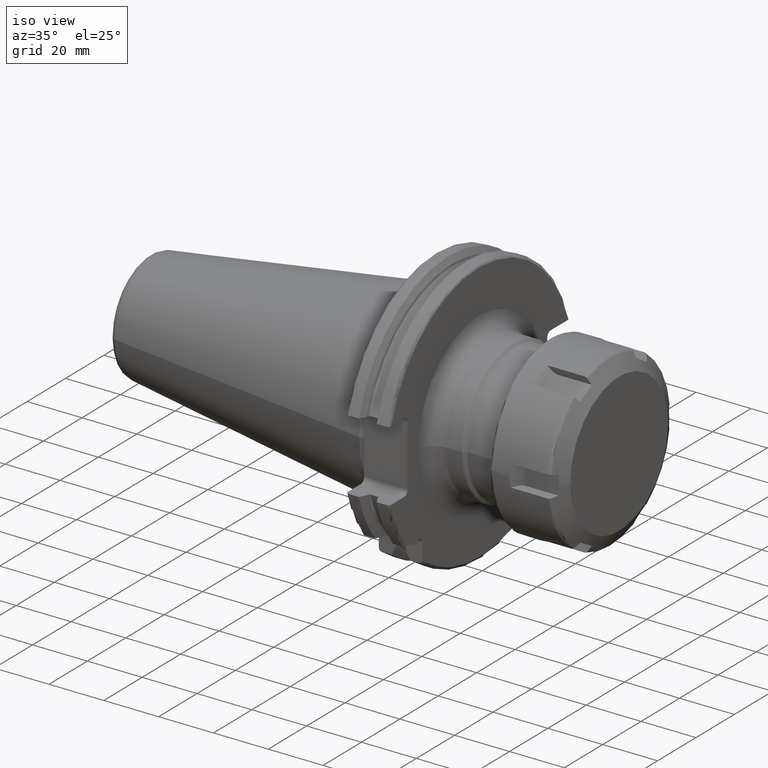
[diagram: clean part render]
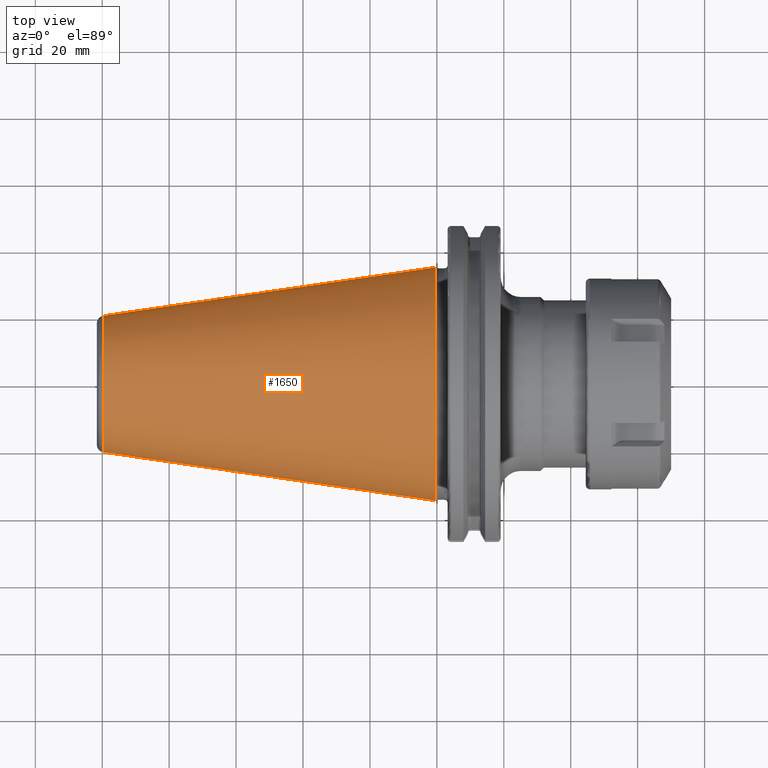
[diagram: tour spotlight — one face highlighted and labeled with its STEP entity id]
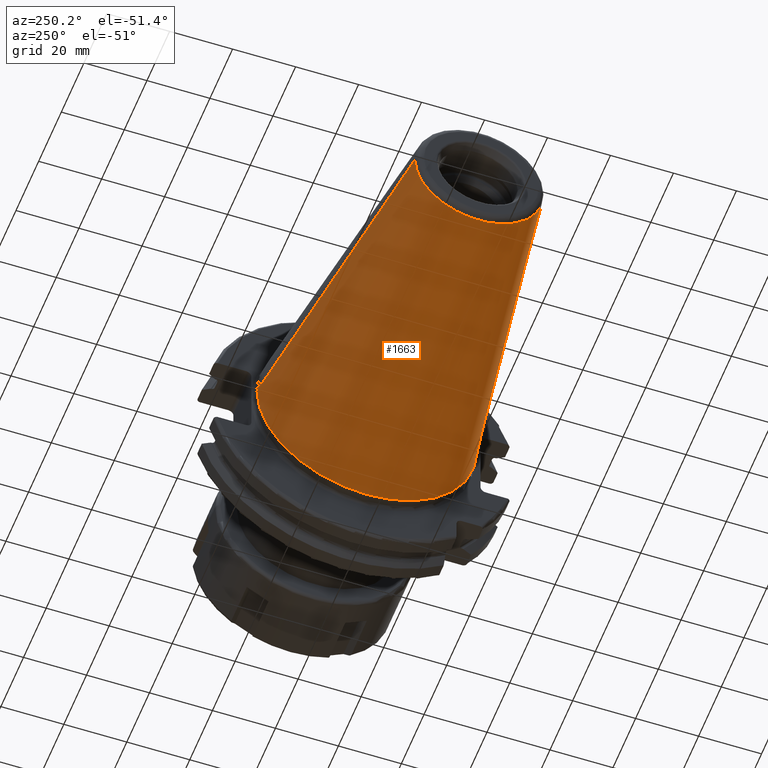
[diagram: tour spotlight — one face highlighted and labeled with its STEP entity id]
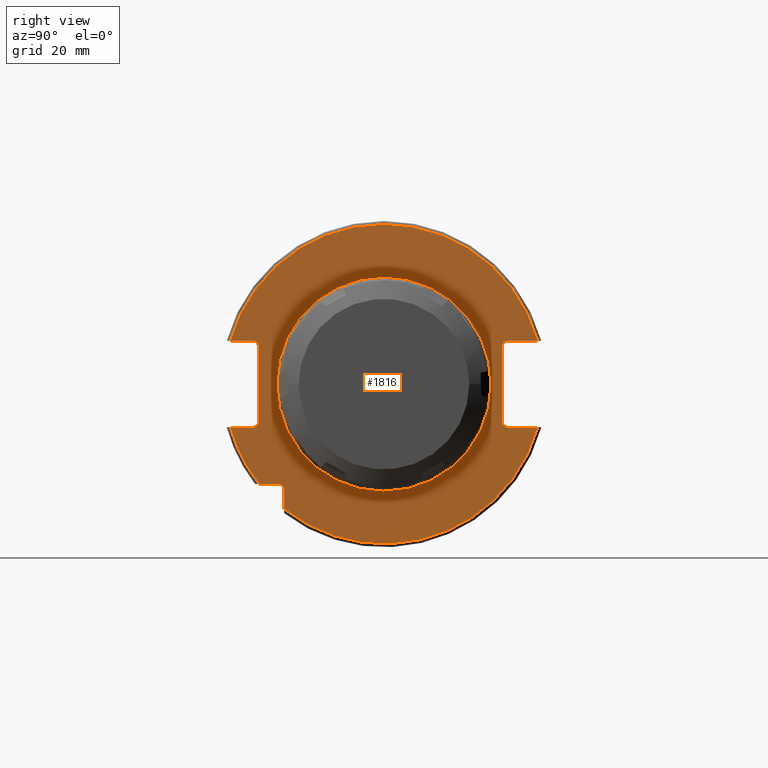
[diagram: tour spotlight — one face highlighted and labeled with its STEP entity id]
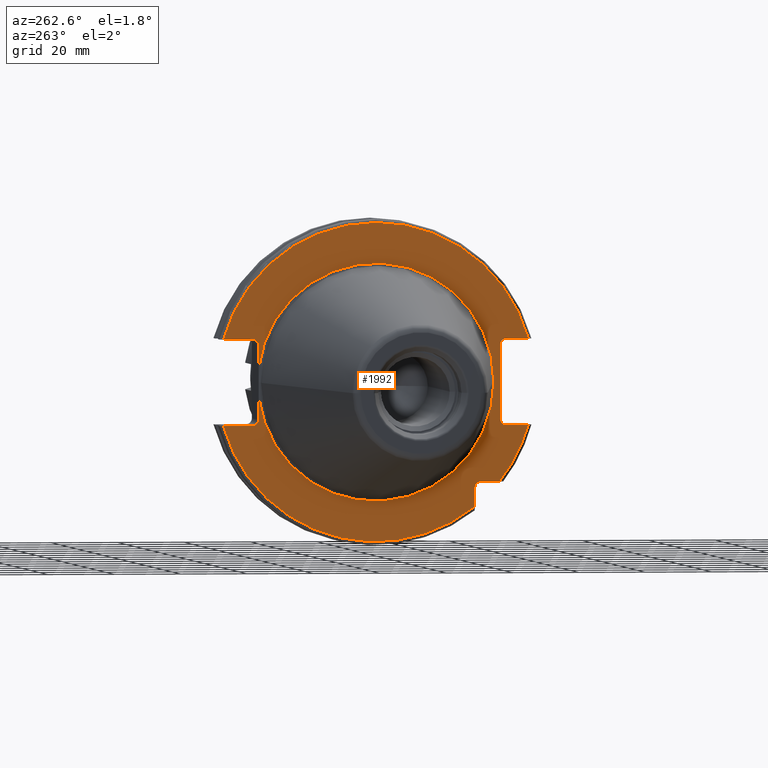
[diagram: tour spotlight — one face highlighted and labeled with its STEP entity id]
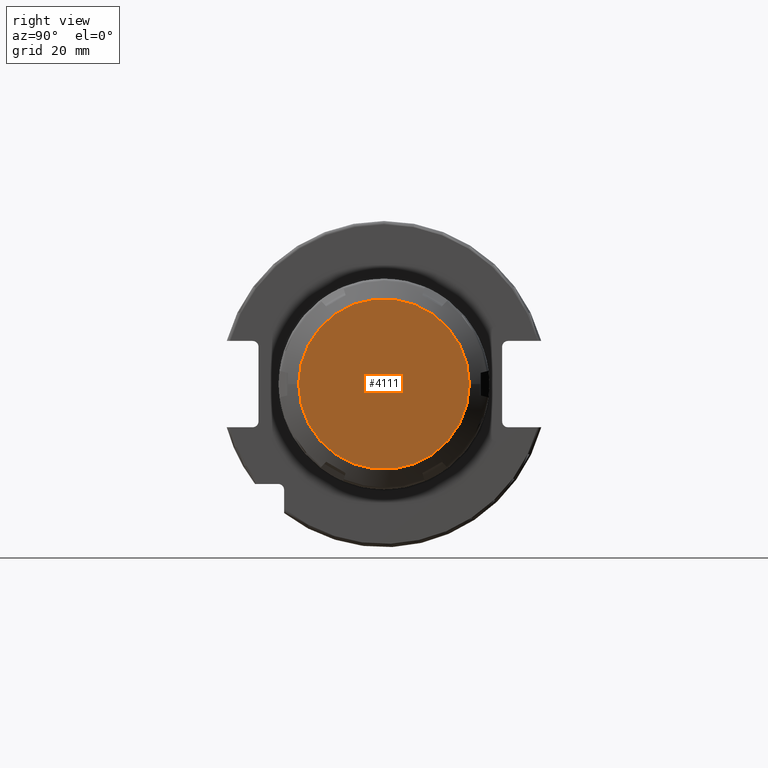
[diagram: tour spotlight — one face highlighted and labeled with its STEP entity id]
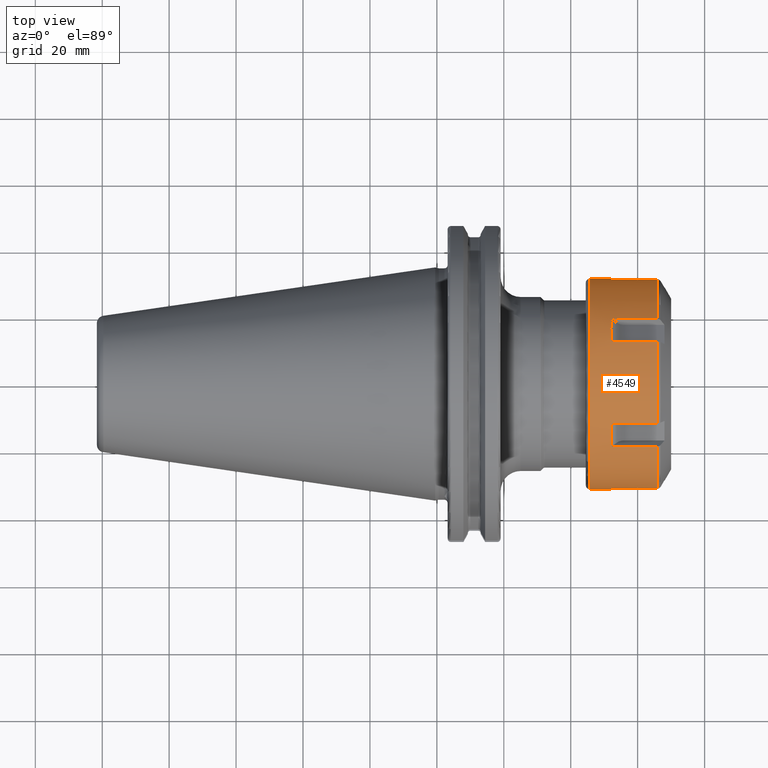
[diagram: tour spotlight — one face highlighted and labeled with its STEP entity id]
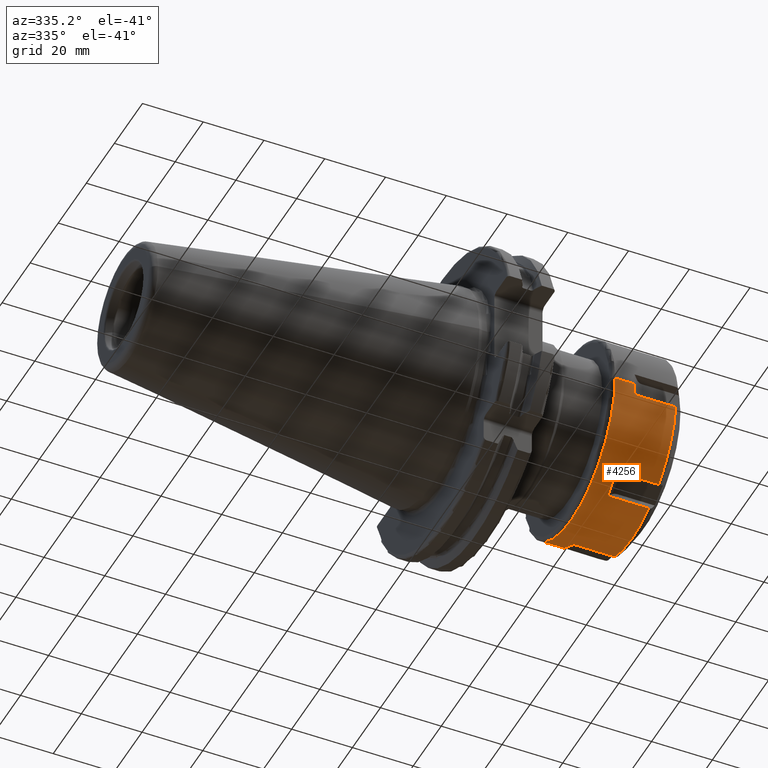
[diagram: tour spotlight — one face highlighted and labeled with its STEP entity id]
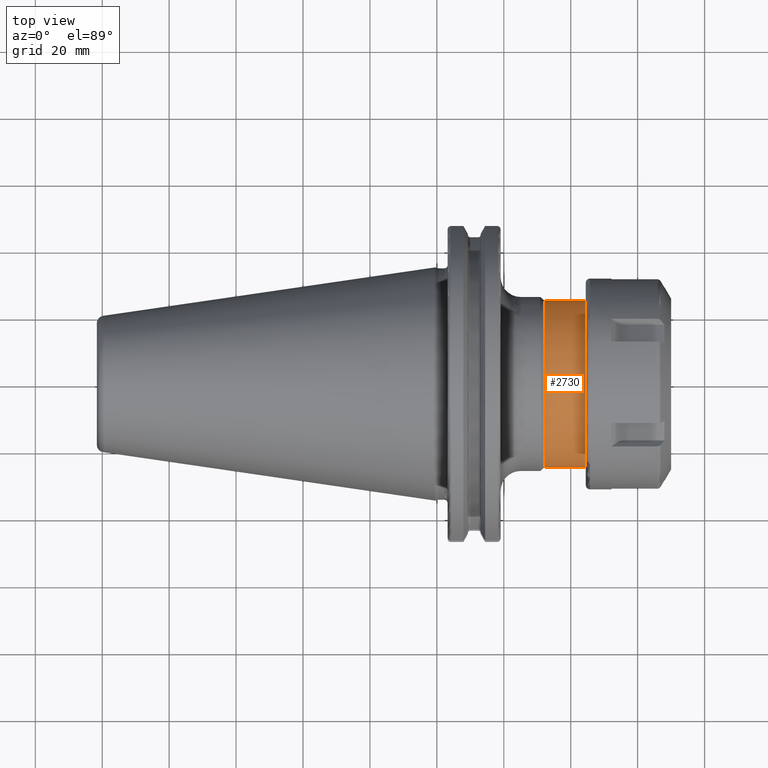
[diagram: tour spotlight — one face highlighted and labeled with its STEP entity id]
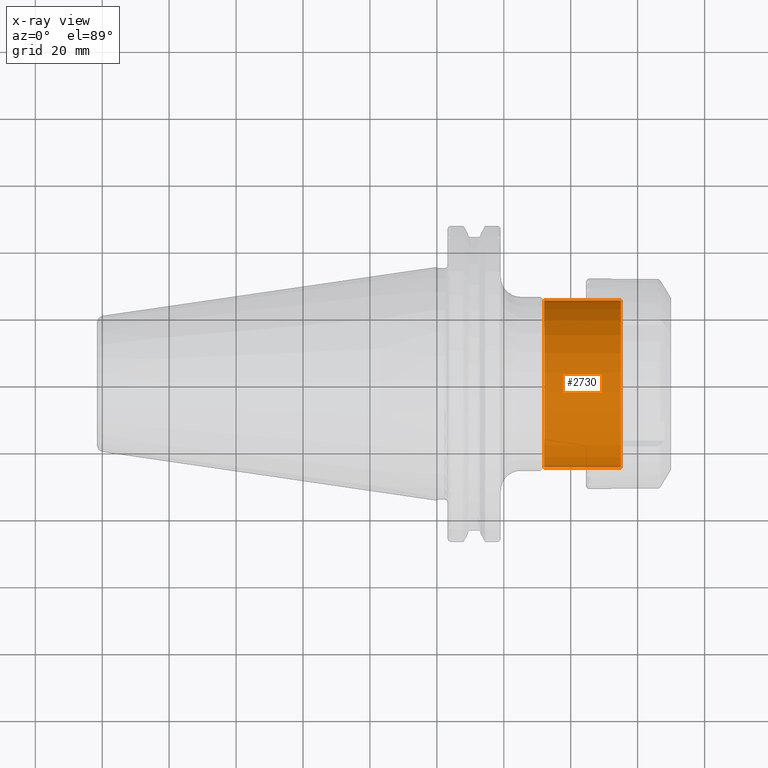
[diagram: x-ray of the same camera — body ghosted, this tour face saturated]
A machine part: a face-by-face anatomy tour. The part has 149 B-rep faces; the first image is the clean iso view, then the 8 largest visible faces are spotlighted one at a time (largest first), each with its STEP entity span.

Face 1 — top view, entity #1650. In plain terms, the highlighted conical surface has half-angle 8.298 deg.
Definition (entity closure, byte-faithful):
#37=CARTESIAN_POINT('',(-9.967471700563E1,0.E0,0.E0));
#38=DIRECTION('',(1.E0,0.E0,0.E0));
#39=DIRECTION('',(0.E0,1.E0,0.E0));
#40=AXIS2_PLACEMENT_3D('',#37,#38,#39);
#42=CARTESIAN_POINT('',(-4.896823332305E-1,0.E0,0.E0));
#43=DIRECTION('',(1.E0,0.E0,0.E0));
#44=DIRECTION('',(0.E0,1.E0,0.E0));
#45=AXIS2_PLACEMENT_3D('',#42,#43,#44);
#47=DIRECTION('',(-9.895312636440E-1,-1.443186691705E-1,0.E0));
#48=VECTOR('',#47,1.002343617797E2);
#49=CARTESIAN_POINT('',(-4.896823332305E-1,3.485358204157E1,0.E0));
#50=LINE('',#49,#48);
#51=DIRECTION('',(-9.895312636440E-1,1.443186691705E-1,0.E0));
#52=VECTOR('',#51,1.002343617797E2);
#53=CARTESIAN_POINT('',(-4.896823332305E-1,-3.485358204157E1,0.E0));
#54=LINE('',#53,#52);
#1318=CARTESIAN_POINT('',(-9.967471700563E1,2.038789234437E1,0.E0));
#1320=VERTEX_POINT('',#1318);
#1322=CARTESIAN_POINT('',(-9.967471700563E1,-2.038789234437E1,0.E0));
#1324=VERTEX_POINT('',#1322);
#1386=CARTESIAN_POINT('',(-4.896823332305E-1,3.485358204157E1,0.E0));
#1387=VERTEX_POINT('',#1386);
#1388=CARTESIAN_POINT('',(-4.896823332305E-1,-3.485358204157E1,0.E0));
#1389=VERTEX_POINT('',#1388);
#1636=CARTESIAN_POINT('',(-5.008219966943E1,0.E0,0.E0));
#1637=DIRECTION('',(1.E0,0.E0,0.E0));
#1638=DIRECTION('',(0.E0,-1.E0,0.E0));
#1639=AXIS2_PLACEMENT_3D('',#1636,#1637,#1638);
#1640=CONICAL_SURFACE('',#1639,2.762073719297E1,8.297826828206E0);
#1642=ORIENTED_EDGE('',*,*,#1641,.F.);
#1644=ORIENTED_EDGE('',*,*,#1643,.T.);
#1646=ORIENTED_EDGE('',*,*,#1645,.T.);
#1647=ORIENTED_EDGE('',*,*,#1629,.F.);
#1648=EDGE_LOOP('',(#1642,#1644,#1646,#1647));
#1649=FACE_OUTER_BOUND('',#1648,.F.);
#1650=ADVANCED_FACE('',(#1649),#1640,.T.);
#41=CIRCLE('',#40,2.038789234437E1);
#46=CIRCLE('',#45,3.485358204157E1);
#1629=EDGE_CURVE('',#1320,#1324,#41,.T.);
#1641=EDGE_CURVE('',#1387,#1320,#50,.T.);
#1643=EDGE_CURVE('',#1387,#1389,#46,.T.);
#1645=EDGE_CURVE('',#1389,#1324,#54,.T.);

Face 2 — auxiliary view, entity #1663. In plain terms, the highlighted conical surface has half-angle 8.298 deg.
Definition (entity closure, byte-faithful):
#32=CARTESIAN_POINT('',(-9.967471700563E1,0.E0,0.E0));
#33=DIRECTION('',(-1.E0,0.E0,0.E0));
#34=DIRECTION('',(0.E0,1.E0,0.E0));
#35=AXIS2_PLACEMENT_3D('',#32,#33,#34);
#47=DIRECTION('',(-9.895312636440E-1,-1.443186691705E-1,0.E0));
#48=VECTOR('',#47,1.002343617797E2);
#49=CARTESIAN_POINT('',(-4.896823332305E-1,3.485358204157E1,0.E0));
#50=LINE('',#49,#48);
#51=DIRECTION('',(-9.895312636440E-1,1.443186691705E-1,0.E0));
#52=VECTOR('',#51,1.002343617797E2);
#53=CARTESIAN_POINT('',(-4.896823332305E-1,-3.485358204157E1,0.E0));
#54=LINE('',#53,#52);
#55=CARTESIAN_POINT('',(-4.896823332305E-1,0.E0,0.E0));
#56=DIRECTION('',(-1.E0,0.E0,0.E0));
#57=DIRECTION('',(0.E0,1.E0,0.E0));
#58=AXIS2_PLACEMENT_3D('',#55,#56,#57);
#1318=CARTESIAN_POINT('',(-9.967471700563E1,2.038789234437E1,0.E0));
#1320=VERTEX_POINT('',#1318);
#1322=CARTESIAN_POINT('',(-9.967471700563E1,-2.038789234437E1,0.E0));
#1324=VERTEX_POINT('',#1322);
#1386=CARTESIAN_POINT('',(-4.896823332305E-1,3.485358204157E1,0.E0));
#1387=VERTEX_POINT('',#1386);
#1388=CARTESIAN_POINT('',(-4.896823332305E-1,-3.485358204157E1,0.E0));
#1389=VERTEX_POINT('',#1388);
#1651=CARTESIAN_POINT('',(-5.008219966943E1,0.E0,0.E0));
#1652=DIRECTION('',(1.E0,0.E0,0.E0));
#1653=DIRECTION('',(0.E0,-1.E0,0.E0));
#1654=AXIS2_PLACEMENT_3D('',#1651,#1652,#1653);
#1655=CONICAL_SURFACE('',#1654,2.762073719297E1,8.297826828206E0);
#1656=ORIENTED_EDGE('',*,*,#1641,.T.);
#1657=ORIENTED_EDGE('',*,*,#1618,.T.);
#1658=ORIENTED_EDGE('',*,*,#1645,.F.);
#1660=ORIENTED_EDGE('',*,*,#1659,.F.);
#1661=EDGE_LOOP('',(#1656,#1657,#1658,#1660));
#1662=FACE_OUTER_BOUND('',#1661,.F.);
#1663=ADVANCED_FACE('',(#1662),#1655,.T.);
#36=CIRCLE('',#35,2.038789234437E1);
#59=CIRCLE('',#58,3.485358204157E1);
#1618=EDGE_CURVE('',#1320,#1324,#36,.T.);
#1641=EDGE_CURVE('',#1387,#1320,#50,.T.);
#1645=EDGE_CURVE('',#1389,#1324,#54,.T.);
#1659=EDGE_CURVE('',#1387,#1389,#59,.T.);

Face 3 — right view, entity #1816. In plain terms, the highlighted planar face has unit normal (1, 0, 0).
Definition (entity closure, byte-faithful):
#130=CARTESIAN_POINT('',(1.905E1,3.705E1,1.115E1));
#131=DIRECTION('',(-1.E0,0.E0,0.E0));
#132=DIRECTION('',(0.E0,-1.E0,0.E0));
#133=AXIS2_PLACEMENT_3D('',#130,#131,#132);
#140=DIRECTION('',(0.E0,0.E0,1.E0));
#141=VECTOR('',#140,2.23E1);
#142=CARTESIAN_POINT('',(1.905E1,-3.75E1,-1.115E1));
#143=LINE('',#142,#141);
#144=DIRECTION('',(0.E0,1.E0,0.E0));
#145=VECTOR('',#144,6.711493733886E0);
#146=CARTESIAN_POINT('',(1.905E1,-4.596149373389E1,1.29E1));
#147=LINE('',#146,#145);
#148=DIRECTION('',(0.E0,-1.E0,0.E0));
#149=VECTOR('',#148,8.911493733886E0);
#150=CARTESIAN_POINT('',(1.905E1,4.596149373389E1,1.29E1));
#151=LINE('',#150,#149);
#152=DIRECTION('',(0.E0,0.E0,-1.E0));
#153=VECTOR('',#152,2.23E1);
#154=CARTESIAN_POINT('',(1.905E1,3.53E1,1.115E1));
#155=LINE('',#154,#153);
#156=DIRECTION('',(0.E0,-1.E0,0.E0));
#157=VECTOR('',#156,8.911493733886E0);
#158=CARTESIAN_POINT('',(1.905E1,4.596149373389E1,-1.29E1));
#159=LINE('',#158,#157);
#160=DIRECTION('',(0.E0,0.E0,1.E0));
#161=VECTOR('',#160,5.653810627237E0);
#162=CARTESIAN_POINT('',(1.905E1,-2.985E1,-3.725381062724E1));
#163=LINE('',#162,#161);
#164=DIRECTION('',(0.E0,-1.E0,0.E0));
#165=VECTOR('',#164,5.653810627237E0);
#166=CARTESIAN_POINT('',(1.905E1,-3.16E1,-2.985E1));
#167=LINE('',#166,#165);
#168=DIRECTION('',(0.E0,1.E0,0.E0));
#169=VECTOR('',#168,6.711493733886E0);
#170=CARTESIAN_POINT('',(1.905E1,-4.596149373389E1,-1.29E1));
#171=LINE('',#170,#169);
#172=CARTESIAN_POINT('',(1.905E1,0.E0,0.E0));
#173=DIRECTION('',(1.E0,0.E0,0.E0));
#174=DIRECTION('',(0.E0,-1.E0,0.E0));
#175=AXIS2_PLACEMENT_3D('',#172,#173,#174);
#177=CARTESIAN_POINT('',(1.905E1,0.E0,0.E0));
#178=DIRECTION('',(1.E0,0.E0,0.E0));
#179=DIRECTION('',(0.E0,1.E0,0.E0));
#180=AXIS2_PLACEMENT_3D('',#177,#178,#179);
#190=CARTESIAN_POINT('',(1.905E1,-3.925E1,-1.115E1));
#191=DIRECTION('',(-1.E0,0.E0,0.E0));
#192=DIRECTION('',(0.E0,1.E0,0.E0));
#193=AXIS2_PLACEMENT_3D('',#190,#191,#192);
#213=CARTESIAN_POINT('',(1.905E1,4.596149373389E1,-1.29E1));
#225=CARTESIAN_POINT('',(1.905E1,0.E0,0.E0));
#226=DIRECTION('',(-1.E0,0.E0,0.E0));
#227=DIRECTION('',(0.E0,9.627964123359E-1,-2.702278083268E-1));
#228=AXIS2_PLACEMENT_3D('',#225,#226,#227);
#230=CARTESIAN_POINT('',(1.905E1,-4.596149373389E1,-1.29E1));
#241=CARTESIAN_POINT('',(1.905E1,0.E0,0.E0));
#242=DIRECTION('',(-1.E0,0.E0,0.E0));
#243=DIRECTION('',(0.E0,-7.803888060170E-1,-6.252945797329E-1));
#244=AXIS2_PLACEMENT_3D('',#241,#242,#243);
#255=CARTESIAN_POINT('',(1.905E1,-3.725381062724E1,-2.985E1));
#261=CARTESIAN_POINT('',(1.905E1,3.705E1,-1.115E1));
#262=DIRECTION('',(-1.E0,0.E0,0.E0));
#263=DIRECTION('',(0.E0,0.E0,-1.E0));
#264=AXIS2_PLACEMENT_3D('',#261,#262,#263);
#326=CARTESIAN_POINT('',(1.905E1,-3.925E1,1.115E1));
#327=DIRECTION('',(-1.E0,0.E0,0.E0));
#328=DIRECTION('',(0.E0,0.E0,1.E0));
#329=AXIS2_PLACEMENT_3D('',#326,#327,#328);
#367=CARTESIAN_POINT('',(1.905E1,4.596149373389E1,1.29E1));
#378=CARTESIAN_POINT('',(1.905E1,0.E0,0.E0));
#379=DIRECTION('',(1.E0,0.E0,0.E0));
#380=DIRECTION('',(0.E0,9.627964123359E-1,2.702278083268E-1));
#381=AXIS2_PLACEMENT_3D('',#378,#379,#380);
#392=CARTESIAN_POINT('',(1.905E1,-4.596149373389E1,1.29E1));
#741=CARTESIAN_POINT('',(1.905E1,-3.16E1,-3.16E1));
#742=DIRECTION('',(-1.E0,0.E0,0.E0));
#743=DIRECTION('',(0.E0,0.E0,1.E0));
#744=AXIS2_PLACEMENT_3D('',#741,#742,#743);
#1459=VERTEX_POINT('',#367);
#1460=VERTEX_POINT('',#392);
#1463=VERTEX_POINT('',#213);
#1464=VERTEX_POINT('',#230);
#1483=CARTESIAN_POINT('',(1.905E1,-2.985E1,-3.725381062724E1));
#1484=VERTEX_POINT('',#1483);
#1491=CARTESIAN_POINT('',(1.905E1,-3.75E1,-1.115E1));
#1493=VERTEX_POINT('',#1491);
#1495=CARTESIAN_POINT('',(1.905E1,-3.925E1,-1.29E1));
#1497=VERTEX_POINT('',#1495);
#1499=CARTESIAN_POINT('',(1.905E1,-3.925E1,1.29E1));
#1501=VERTEX_POINT('',#1499);
#1503=CARTESIAN_POINT('',(1.905E1,-3.75E1,1.115E1));
#1505=VERTEX_POINT('',#1503);
#1507=CARTESIAN_POINT('',(1.905E1,3.53E1,1.115E1));
#1509=VERTEX_POINT('',#1507);
#1511=CARTESIAN_POINT('',(1.905E1,3.705E1,1.29E1));
#1513=VERTEX_POINT('',#1511);
#1515=CARTESIAN_POINT('',(1.905E1,3.705E1,-1.29E1));
#1517=VERTEX_POINT('',#1515);
#1519=CARTESIAN_POINT('',(1.905E1,3.53E1,-1.115E1));
#1521=VERTEX_POINT('',#1519);
#1523=CARTESIAN_POINT('',(1.905E1,-3.16E1,-2.985E1));
#1524=CARTESIAN_POINT('',(1.905E1,-2.985E1,-3.16E1));
#1525=VERTEX_POINT('',#1523);
#1526=VERTEX_POINT('',#1524);
#1547=CARTESIAN_POINT('',(1.905E1,-3.2E1,0.E0));
#1548=CARTESIAN_POINT('',(1.905E1,3.2E1,0.E0));
#1549=VERTEX_POINT('',#1547);
#1550=VERTEX_POINT('',#1548);
#1588=VERTEX_POINT('',#255);
#1773=CARTESIAN_POINT('',(1.905E1,0.E0,0.E0));
#1774=DIRECTION('',(1.E0,0.E0,0.E0));
#1775=DIRECTION('',(0.E0,-1.E0,0.E0));
#1776=AXIS2_PLACEMENT_3D('',#1773,#1774,#1775);
#1777=PLANE('',#1776);
#1779=ORIENTED_EDGE('',*,*,#1778,.T.);
#1781=ORIENTED_EDGE('',*,*,#1780,.F.);
#1783=ORIENTED_EDGE('',*,*,#1782,.F.);
#1785=ORIENTED_EDGE('',*,*,#1784,.F.);
#1787=ORIENTED_EDGE('',*,*,#1786,.T.);
#1788=ORIENTED_EDGE('',*,*,#1764,.F.);
#1789=ORIENTED_EDGE('',*,*,#1753,.T.);
#1791=ORIENTED_EDGE('',*,*,#1790,.F.);
#1793=ORIENTED_EDGE('',*,*,#1792,.F.);
#1795=ORIENTED_EDGE('',*,*,#1794,.T.);
#1797=ORIENTED_EDGE('',*,*,#1796,.T.);
#1799=ORIENTED_EDGE('',*,*,#1798,.F.);
#1801=ORIENTED_EDGE('',*,*,#1800,.T.);
#1803=ORIENTED_EDGE('',*,*,#1802,.T.);
#1805=ORIENTED_EDGE('',*,*,#1804,.T.);
#1807=ORIENTED_EDGE('',*,*,#1806,.F.);
#1808=EDGE_LOOP('',(#1779,#1781,#1783,#1785,#1787,#1788,#1789,#1791,#1793,#1795,
#1797,#1799,#1801,#1803,#1805,#1807));
#1809=FACE_OUTER_BOUND('',#1808,.F.);
#1811=ORIENTED_EDGE('',*,*,#1810,.T.);
#1813=ORIENTED_EDGE('',*,*,#1812,.T.);
#1814=EDGE_LOOP('',(#1811,#1813));
#1815=FACE_BOUND('',#1814,.F.);
#1816=ADVANCED_FACE('',(#1809,#1815),#1777,.T.);
#134=CIRCLE('',#133,1.75E0);
#176=CIRCLE('',#175,3.2E1);
#181=CIRCLE('',#180,3.2E1);
#194=CIRCLE('',#193,1.75E0);
#229=CIRCLE('',#228,4.77375E1);
#245=CIRCLE('',#244,4.77375E1);
#265=CIRCLE('',#264,1.75E0);
#330=CIRCLE('',#329,1.75E0);
#382=CIRCLE('',#381,4.77375E1);
#745=CIRCLE('',#744,1.75E0);
#1753=EDGE_CURVE('',#1509,#1521,#155,.T.);
#1764=EDGE_CURVE('',#1509,#1513,#134,.T.);
#1778=EDGE_CURVE('',#1493,#1505,#143,.T.);
#1780=EDGE_CURVE('',#1501,#1505,#330,.T.);
#1782=EDGE_CURVE('',#1460,#1501,#147,.T.);
#1784=EDGE_CURVE('',#1459,#1460,#382,.T.);
#1786=EDGE_CURVE('',#1459,#1513,#151,.T.);
#1790=EDGE_CURVE('',#1517,#1521,#265,.T.);
#1792=EDGE_CURVE('',#1463,#1517,#159,.T.);
#1794=EDGE_CURVE('',#1463,#1484,#229,.T.);
#1796=EDGE_CURVE('',#1484,#1526,#163,.T.);
#1798=EDGE_CURVE('',#1525,#1526,#745,.T.);
#1800=EDGE_CURVE('',#1525,#1588,#167,.T.);
#1802=EDGE_CURVE('',#1588,#1464,#245,.T.);
#1804=EDGE_CURVE('',#1464,#1497,#171,.T.);
#1806=EDGE_CURVE('',#1493,#1497,#194,.T.);
#1810=EDGE_CURVE('',#1549,#1550,#176,.T.);
#1812=EDGE_CURVE('',#1550,#1549,#181,.T.);

Face 4 — auxiliary view, entity #1992. In plain terms, the highlighted planar face has unit normal (1, 0, 0).
Definition (entity closure, byte-faithful):
#105=CARTESIAN_POINT('',(3.2E0,3.53E1,-4.414818795828E0));
#117=CARTESIAN_POINT('',(3.2E0,0.E0,0.E0));
#118=DIRECTION('',(-1.E0,0.E0,0.E0));
#119=DIRECTION('',(0.E0,9.922698524245E-1,-1.240989120402E-1));
#120=AXIS2_PLACEMENT_3D('',#117,#118,#119);
#135=CARTESIAN_POINT('',(3.2E0,3.705E1,1.115E1));
#136=DIRECTION('',(1.E0,0.E0,0.E0));
#137=DIRECTION('',(0.E0,0.E0,1.E0));
#138=AXIS2_PLACEMENT_3D('',#135,#136,#137);
#195=CARTESIAN_POINT('',(3.2E0,-3.925E1,-1.115E1));
#196=DIRECTION('',(1.E0,0.E0,0.E0));
#197=DIRECTION('',(0.E0,0.E0,-1.E0));
#198=AXIS2_PLACEMENT_3D('',#195,#196,#197);
#266=CARTESIAN_POINT('',(3.2E0,3.705E1,-1.115E1));
#267=DIRECTION('',(1.E0,0.E0,0.E0));
#268=DIRECTION('',(0.E0,-1.E0,0.E0));
#269=AXIS2_PLACEMENT_3D('',#266,#267,#268);
#271=DIRECTION('',(0.E0,1.E0,0.E0));
#272=VECTOR('',#271,6.711493733886E0);
#273=CARTESIAN_POINT('',(3.2E0,-4.596149373389E1,1.29E1));
#274=LINE('',#273,#272);
#275=DIRECTION('',(0.E0,0.E0,1.E0));
#276=VECTOR('',#275,2.23E1);
#277=CARTESIAN_POINT('',(3.2E0,-3.75E1,-1.115E1));
#278=LINE('',#277,#276);
#279=DIRECTION('',(0.E0,1.E0,0.E0));
#280=VECTOR('',#279,6.711493733886E0);
#281=CARTESIAN_POINT('',(3.2E0,-4.596149373389E1,-1.29E1));
#282=LINE('',#281,#280);
#283=CARTESIAN_POINT('',(3.2E0,0.E0,0.E0));
#284=DIRECTION('',(-1.E0,0.E0,0.E0));
#285=DIRECTION('',(0.E0,-7.803888060170E-1,-6.252945797329E-1));
#286=AXIS2_PLACEMENT_3D('',#283,#284,#285);
#288=DIRECTION('',(0.E0,-1.E0,0.E0));
#289=VECTOR('',#288,5.653810627237E0);
#290=CARTESIAN_POINT('',(3.2E0,-3.16E1,-2.985E1));
#291=LINE('',#290,#289);
#292=DIRECTION('',(0.E0,0.E0,1.E0));
#293=VECTOR('',#292,5.653810627237E0);
#294=CARTESIAN_POINT('',(3.2E0,-2.985E1,-3.725381062724E1));
#295=LINE('',#294,#293);
#296=CARTESIAN_POINT('',(3.2E0,0.E0,0.E0));
#297=DIRECTION('',(-1.E0,0.E0,0.E0));
#298=DIRECTION('',(0.E0,9.627964123359E-1,-2.702278083268E-1));
#299=AXIS2_PLACEMENT_3D('',#296,#297,#298);
#301=DIRECTION('',(0.E0,-1.E0,0.E0));
#302=VECTOR('',#301,8.911493733886E0);
#303=CARTESIAN_POINT('',(3.2E0,4.596149373389E1,-1.29E1));
#304=LINE('',#303,#302);
#305=DIRECTION('',(0.E0,0.E0,-1.E0));
#306=VECTOR('',#305,6.735181204172E0);
#307=CARTESIAN_POINT('',(3.2E0,3.53E1,-4.414818795828E0));
#308=LINE('',#307,#306);
#309=DIRECTION('',(0.E0,0.E0,-1.E0));
#310=VECTOR('',#309,6.735181204172E0);
#311=CARTESIAN_POINT('',(3.2E0,3.53E1,1.115E1));
#312=LINE('',#311,#310);
#313=DIRECTION('',(0.E0,-1.E0,0.E0));
#314=VECTOR('',#313,8.911493733886E0);
#315=CARTESIAN_POINT('',(3.2E0,4.596149373389E1,1.29E1));
#316=LINE('',#315,#314);
#317=CARTESIAN_POINT('',(3.2E0,0.E0,0.E0));
#318=DIRECTION('',(1.E0,0.E0,0.E0));
#319=DIRECTION('',(0.E0,9.627964123359E-1,2.702278083268E-1));
#320=AXIS2_PLACEMENT_3D('',#317,#318,#319);
#331=CARTESIAN_POINT('',(3.2E0,-3.925E1,1.115E1));
#332=DIRECTION('',(1.E0,0.E0,0.E0));
#333=DIRECTION('',(0.E0,1.E0,0.E0));
#334=AXIS2_PLACEMENT_3D('',#331,#332,#333);
#345=CARTESIAN_POINT('',(3.2E0,4.596149373389E1,1.29E1));
#352=CARTESIAN_POINT('',(3.2E0,-4.596149373389E1,1.29E1));
#746=CARTESIAN_POINT('',(3.2E0,-3.16E1,-3.16E1));
#747=DIRECTION('',(1.E0,0.E0,0.E0));
#748=DIRECTION('',(0.E0,1.E0,0.E0));
#749=AXIS2_PLACEMENT_3D('',#746,#747,#748);
#755=CARTESIAN_POINT('',(3.2E0,4.596149373389E1,-1.29E1));
#790=CARTESIAN_POINT('',(3.2E0,-4.596149373389E1,-1.29E1));
#797=CARTESIAN_POINT('',(3.2E0,-3.725381062724E1,-2.985E1));
#936=CARTESIAN_POINT('',(3.2E0,3.53E1,4.414818795828E0));
#947=CARTESIAN_POINT('',(3.2E0,0.E0,0.E0));
#948=DIRECTION('',(1.E0,0.E0,0.E0));
#949=DIRECTION('',(0.E0,9.922698524245E-1,1.240989120402E-1));
#950=AXIS2_PLACEMENT_3D('',#947,#948,#949);
#1330=CARTESIAN_POINT('',(3.2E0,-3.5575E1,0.E0));
#1332=VERTEX_POINT('',#1330);
#1456=VERTEX_POINT('',#936);
#1458=VERTEX_POINT('',#105);
#1461=VERTEX_POINT('',#345);
#1462=VERTEX_POINT('',#352);
#1465=VERTEX_POINT('',#755);
#1466=VERTEX_POINT('',#790);
#1489=CARTESIAN_POINT('',(3.2E0,-2.985E1,-3.725381062724E1));
#1490=VERTEX_POINT('',#1489);
#1492=CARTESIAN_POINT('',(3.2E0,-3.75E1,-1.115E1));
#1494=VERTEX_POINT('',#1492);
#1496=CARTESIAN_POINT('',(3.2E0,-3.925E1,-1.29E1));
#1498=VERTEX_POINT('',#1496);
#1500=CARTESIAN_POINT('',(3.2E0,-3.925E1,1.29E1));
#1502=VERTEX_POINT('',#1500);
#1504=CARTESIAN_POINT('',(3.2E0,-3.75E1,1.115E1));
#1506=VERTEX_POINT('',#1504);
#1508=CARTESIAN_POINT('',(3.2E0,3.53E1,1.115E1));
#1510=VERTEX_POINT('',#1508);
#1512=CARTESIAN_POINT('',(3.2E0,3.705E1,1.29E1));
#1514=VERTEX_POINT('',#1512);
#1516=CARTESIAN_POINT('',(3.2E0,3.705E1,-1.29E1));
#1518=VERTEX_POINT('',#1516);
#1520=CARTESIAN_POINT('',(3.2E0,3.53E1,-1.115E1));
#1522=VERTEX_POINT('',#1520);
#1527=CARTESIAN_POINT('',(3.2E0,-2.985E1,-3.16E1));
#1528=CARTESIAN_POINT('',(3.2E0,-3.16E1,-2.985E1));
#1529=VERTEX_POINT('',#1527);
#1530=VERTEX_POINT('',#1528);
#1589=VERTEX_POINT('',#797);
#1956=CARTESIAN_POINT('',(3.2E0,0.E0,0.E0));
#1957=DIRECTION('',(1.E0,0.E0,0.E0));
#1958=DIRECTION('',(0.E0,-1.E0,0.E0));
#1959=AXIS2_PLACEMENT_3D('',#1956,#1957,#1958);
#1960=PLANE('',#1959);
#1962=ORIENTED_EDGE('',*,*,#1961,.T.);
#1964=ORIENTED_EDGE('',*,*,#1963,.F.);
#1965=ORIENTED_EDGE('',*,*,#1824,.F.);
#1966=ORIENTED_EDGE('',*,*,#1841,.F.);
#1967=ORIENTED_EDGE('',*,*,#1875,.F.);
#1969=ORIENTED_EDGE('',*,*,#1968,.F.);
#1971=ORIENTED_EDGE('',*,*,#1970,.F.);
#1973=ORIENTED_EDGE('',*,*,#1972,.F.);
#1975=ORIENTED_EDGE('',*,*,#1974,.F.);
#1977=ORIENTED_EDGE('',*,*,#1976,.F.);
#1978=ORIENTED_EDGE('',*,*,#1916,.T.);
#1979=ORIENTED_EDGE('',*,*,#1951,.F.);
#1980=ORIENTED_EDGE('',*,*,#1749,.F.);
#1981=ORIENTED_EDGE('',*,*,#1732,.T.);
#1983=ORIENTED_EDGE('',*,*,#1982,.F.);
#1984=ORIENTED_EDGE('',*,*,#1744,.F.);
#1985=ORIENTED_EDGE('',*,*,#1768,.F.);
#1987=ORIENTED_EDGE('',*,*,#1986,.F.);
#1989=ORIENTED_EDGE('',*,*,#1988,.T.);
#1990=EDGE_LOOP('',(#1962,#1964,#1965,#1966,#1967,#1969,#1971,#1973,#1975,#1977,
#1978,#1979,#1980,#1981,#1983,#1984,#1985,#1987,#1989));
#1991=FACE_OUTER_BOUND('',#1990,.F.);
#1992=ADVANCED_FACE('',(#1991),#1960,.F.);
#121=CIRCLE('',#120,3.5575E1);
#139=CIRCLE('',#138,1.75E0);
#199=CIRCLE('',#198,1.75E0);
#270=CIRCLE('',#269,1.75E0);
#287=CIRCLE('',#286,4.77375E1);
#300=CIRCLE('',#299,4.77375E1);
#321=CIRCLE('',#320,4.77375E1);
#335=CIRCLE('',#334,1.75E0);
#750=CIRCLE('',#749,1.75E0);
#951=CIRCLE('',#950,3.5575E1);
#1732=EDGE_CURVE('',#1458,#1332,#121,.T.);
#1744=EDGE_CURVE('',#1510,#1456,#312,.T.);
#1749=EDGE_CURVE('',#1458,#1522,#308,.T.);
#1768=EDGE_CURVE('',#1514,#1510,#139,.T.);
#1824=EDGE_CURVE('',#1494,#1506,#278,.T.);
#1841=EDGE_CURVE('',#1498,#1494,#199,.T.);
#1875=EDGE_CURVE('',#1466,#1498,#282,.T.);
#1916=EDGE_CURVE('',#1465,#1518,#304,.T.);
#1951=EDGE_CURVE('',#1522,#1518,#270,.T.);
#1961=EDGE_CURVE('',#1462,#1502,#274,.T.);
#1963=EDGE_CURVE('',#1506,#1502,#335,.T.);
#1968=EDGE_CURVE('',#1589,#1466,#287,.T.);
#1970=EDGE_CURVE('',#1530,#1589,#291,.T.);
#1972=EDGE_CURVE('',#1529,#1530,#750,.T.);
#1974=EDGE_CURVE('',#1490,#1529,#295,.T.);
#1976=EDGE_CURVE('',#1465,#1490,#300,.T.);
#1982=EDGE_CURVE('',#1456,#1332,#951,.T.);
#1986=EDGE_CURVE('',#1461,#1514,#316,.T.);
#1988=EDGE_CURVE('',#1461,#1462,#321,.T.);

Face 5 — right view, entity #4111. In plain terms, the highlighted planar face has unit normal (1, 0, 0).
Definition (entity closure, byte-faithful):
#3345=CARTESIAN_POINT('',(2.55E1,0.E0,0.E0));
#3346=DIRECTION('',(-1.E0,0.E0,0.E0));
#3347=DIRECTION('',(0.E0,1.E0,0.E0));
#3348=AXIS2_PLACEMENT_3D('',#3345,#3346,#3347);
#3705=CARTESIAN_POINT('',(2.55E1,0.E0,0.E0));
#3706=DIRECTION('',(1.E0,0.E0,0.E0));
#3707=DIRECTION('',(0.E0,1.E0,0.E0));
#3708=AXIS2_PLACEMENT_3D('',#3705,#3706,#3707);
#3988=CARTESIAN_POINT('',(2.55E1,2.55E1,0.E0));
#3989=CARTESIAN_POINT('',(2.55E1,-2.55E1,0.E0));
#3990=VERTEX_POINT('',#3988);
#3991=VERTEX_POINT('',#3989);
#4100=CARTESIAN_POINT('',(2.55E1,0.E0,0.E0));
#4101=DIRECTION('',(1.E0,0.E0,0.E0));
#4102=DIRECTION('',(0.E0,-1.E0,0.E0));
#4103=AXIS2_PLACEMENT_3D('',#4100,#4101,#4102);
#4104=PLANE('',#4103);
#4106=ORIENTED_EDGE('',*,*,#4105,.T.);
#4108=ORIENTED_EDGE('',*,*,#4107,.F.);
#4109=EDGE_LOOP('',(#4106,#4108));
#4110=FACE_OUTER_BOUND('',#4109,.F.);
#4111=ADVANCED_FACE('',(#4110),#4104,.T.);
#3349=CIRCLE('',#3348,2.55E1);
#3709=CIRCLE('',#3708,2.55E1);
#4105=EDGE_CURVE('',#3990,#3991,#3349,.T.);
#4107=EDGE_CURVE('',#3990,#3991,#3709,.T.);

Face 6 — top view, entity #4549. In plain terms, the highlighted cylindrical surface (partial cylindrical patch) has radius 31.5 mm, axis along (1, 0, 0).
Definition (entity closure, byte-faithful):
#3423=DIRECTION('',(-1.E0,0.E0,1.226696553146E-12));
#3424=VECTOR('',#3423,6.25E0);
#3425=CARTESIAN_POINT('',(7.5E0,3.149999999997E1,3.183525763783E-14));
#3426=LINE('',#3425,#3424);
#3432=DIRECTION('',(-1.E0,0.E0,-1.230541309323E-12));
#3433=VECTOR('',#3432,6.25E0);
#3434=CARTESIAN_POINT('',(7.5E0,-3.149999999997E1,0.E0));
#3435=LINE('',#3434,#3433);
#3472=CARTESIAN_POINT('',(2.131421054840E1,1.906488828622E1,2.507548672772E1));
#3492=CARTESIAN_POINT('',(2.131421054840E1,3.124845266157E1,3.972934212316E0));
#3494=CARTESIAN_POINT('',(2.131421054840E1,-1.218356437536E1,2.904842094003E1));
#3514=CARTESIAN_POINT('',(2.131421054840E1,1.218356437536E1,2.904842094003E1));
#3516=CARTESIAN_POINT('',(2.131421054840E1,-3.124845266157E1,3.972934212316E0));
#3536=CARTESIAN_POINT('',(2.131421054840E1,-1.906488828622E1,2.507548672772E1));
#3741=CARTESIAN_POINT('',(7.5E0,-3.148999999997E1,7.936623967406E-1));
#3742=CARTESIAN_POINT('',(7.526914489918E0,-3.146308551005E1,1.861543766702E0));
#3743=CARTESIAN_POINT('',(7.607834703287E0,-3.138216529668E1,2.921239740395E0));
#3744=CARTESIAN_POINT('',(7.741547338395E0,-3.124845266157E1,3.972934212316E0));
#3760=DIRECTION('',(1.E0,0.E0,0.E0));
#3761=VECTOR('',#3760,1.357266321E1);
#3762=CARTESIAN_POINT('',(7.741547338395E0,-3.124845266157E1,3.972934212316E0));
#3763=LINE('',#3762,#3761);
#3764=CARTESIAN_POINT('',(7.5E0,0.E0,0.E0));
#3765=DIRECTION('',(1.E0,0.E0,0.E0));
#3766=DIRECTION('',(0.E0,-9.996825396825E-1,2.519563164259E-2));
#3767=AXIS2_PLACEMENT_3D('',#3764,#3765,#3766);
#3769=CARTESIAN_POINT('',(1.25E0,0.E0,0.E0));
#3770=DIRECTION('',(-1.E0,0.E0,0.E0));
#3771=DIRECTION('',(0.E0,-1.E0,0.E0));
#3772=AXIS2_PLACEMENT_3D('',#3769,#3770,#3771);
#3774=CARTESIAN_POINT('',(7.5E0,0.E0,0.E0));
#3775=DIRECTION('',(1.E0,0.E0,0.E0));
#3776=DIRECTION('',(0.E0,1.E0,0.E0));
#3777=AXIS2_PLACEMENT_3D('',#3774,#3775,#3776);
#3779=DIRECTION('',(1.E0,0.E0,0.E0));
#3780=VECTOR('',#3779,1.357266321E1);
#3781=CARTESIAN_POINT('',(7.741547338395E0,3.124845266157E1,3.972934212316E0));
#3782=LINE('',#3781,#3780);
#3783=CARTESIAN_POINT('',(2.131421054840E1,0.E0,0.E0));
#3784=DIRECTION('',(-1.E0,0.E0,0.E0));
#3785=DIRECTION('',(0.E0,6.052345487694E-1,7.960471977062E-1));
#3786=AXIS2_PLACEMENT_3D('',#3783,#3784,#3785);
#3788=DIRECTION('',(1.E0,0.E0,0.E0));
#3789=VECTOR('',#3788,1.357266321E1);
#3790=CARTESIAN_POINT('',(7.741547338395E0,1.906488828622E1,2.507548672772E1));
#3791=LINE('',#3790,#3789);
#3792=CARTESIAN_POINT('',(7.741547338395E0,1.906488828622E1,2.507548672772E1));
#3793=CARTESIAN_POINT('',(7.404800931005E0,1.693948685296E1,2.669142907526E1));
#3794=CARTESIAN_POINT('',(7.404800931005E0,1.464571221600E1,2.801574047936E1));
#3795=CARTESIAN_POINT('',(7.741547338395E0,1.218356437536E1,2.904842094003E1));
#3797=DIRECTION('',(1.E0,0.E0,0.E0));
#3798=VECTOR('',#3797,1.357266321E1);
#3799=CARTESIAN_POINT('',(7.741547338395E0,1.218356437536E1,2.904842094003E1));
#3800=LINE('',#3799,#3798);
#3801=CARTESIAN_POINT('',(2.131421054840E1,0.E0,0.E0));
#3802=DIRECTION('',(-1.E0,0.E0,0.E0));
#3803=DIRECTION('',(0.E0,-3.867798214403E-1,9.221720933354E-1));
#3804=AXIS2_PLACEMENT_3D('',#3801,#3802,#3803);
#3806=DIRECTION('',(1.E0,0.E0,0.E0));
#3807=VECTOR('',#3806,1.357266321E1);
#3808=CARTESIAN_POINT('',(7.741547338395E0,-1.218356437536E1,2.904842094003E1));
#3809=LINE('',#3808,#3807);
#3810=CARTESIAN_POINT('',(7.741547338395E0,-1.218356437536E1,2.904842094003E1));
#3811=CARTESIAN_POINT('',(7.404800931005E0,-1.464571221600E1,2.801574047936E1));
#3812=CARTESIAN_POINT('',(7.404800931005E0,-1.693948685296E1,2.669142907526E1));
#3813=CARTESIAN_POINT('',(7.741547338395E0,-1.906488828622E1,2.507548672772E1));
#3815=DIRECTION('',(1.E0,0.E0,0.E0));
#3816=VECTOR('',#3815,1.357266321E1);
#3817=CARTESIAN_POINT('',(7.741547338395E0,-1.906488828622E1,2.507548672772E1));
#3818=LINE('',#3817,#3816);
#3819=CARTESIAN_POINT('',(2.131421054840E1,0.E0,0.E0));
#3820=DIRECTION('',(-1.E0,0.E0,0.E0));
#3821=DIRECTION('',(0.E0,-9.920143702097E-1,1.261248956292E-1));
#3822=AXIS2_PLACEMENT_3D('',#3819,#3820,#3821);
#3852=CARTESIAN_POINT('',(7.741547338395E0,3.124845266157E1,3.972934212316E0));
#3853=CARTESIAN_POINT('',(7.607834703287E0,3.138216529668E1,2.921239740395E0));
#3854=CARTESIAN_POINT('',(7.526914489918E0,3.146308551005E1,1.861543766702E0));
#3855=CARTESIAN_POINT('',(7.5E0,3.148999999997E1,7.936623967410E-1));
#3996=CARTESIAN_POINT('',(1.25E0,3.149999999997E1,1.784644752757E-14));
#3997=CARTESIAN_POINT('',(1.25E0,-3.149999999997E1,-2.170408494488E-14));
#3998=VERTEX_POINT('',#3996);
#3999=VERTEX_POINT('',#3997);
#4005=VERTEX_POINT('',#3492);
#4007=CARTESIAN_POINT('',(7.5E0,3.149999999997E1,3.183525763783E-14));
#4008=VERTEX_POINT('',#4007);
#4010=CARTESIAN_POINT('',(7.5E0,3.148999999997E1,7.936623967410E-1));
#4012=VERTEX_POINT('',#4010);
#4013=CARTESIAN_POINT('',(7.741547338395E0,3.124845266157E1,3.972934212316E0));
#4014=VERTEX_POINT('',#4013);
#4022=VERTEX_POINT('',#3741);
#4023=VERTEX_POINT('',#3744);
#4030=VERTEX_POINT('',#3514);
#4031=VERTEX_POINT('',#3472);
#4032=CARTESIAN_POINT('',(7.741547338395E0,1.218356437536E1,2.904842094003E1));
#4033=VERTEX_POINT('',#4032);
#4034=CARTESIAN_POINT('',(7.741547338395E0,1.906488828622E1,2.507548672772E1));
#4035=VERTEX_POINT('',#4034);
#4045=VERTEX_POINT('',#3536);
#4046=VERTEX_POINT('',#3494);
#4047=CARTESIAN_POINT('',(7.741547338395E0,-1.906488828622E1,2.507548672772E1));
#4048=VERTEX_POINT('',#4047);
#4049=CARTESIAN_POINT('',(7.741547338395E0,-1.218356437536E1,2.904842094003E1));
#4050=VERTEX_POINT('',#4049);
#4062=VERTEX_POINT('',#3516);
#4063=CARTESIAN_POINT('',(7.5E0,-3.149999999997E1,0.E0));
#4064=VERTEX_POINT('',#4063);
#4515=CARTESIAN_POINT('',(-1.275E0,0.E0,0.E0));
#4516=DIRECTION('',(1.E0,0.E0,0.E0));
#4517=DIRECTION('',(0.E0,-1.E0,0.E0));
#4518=AXIS2_PLACEMENT_3D('',#4515,#4516,#4517);
#4519=CYLINDRICAL_SURFACE('',#4518,3.149999999997E1);
#4520=ORIENTED_EDGE('',*,*,#4464,.F.);
#4521=ORIENTED_EDGE('',*,*,#4483,.F.);
#4522=ORIENTED_EDGE('',*,*,#4510,.T.);
#4523=ORIENTED_EDGE('',*,*,#4235,.T.);
#4525=ORIENTED_EDGE('',*,*,#4524,.T.);
#4526=ORIENTED_EDGE('',*,*,#4231,.F.);
#4528=ORIENTED_EDGE('',*,*,#4527,.T.);
#4530=ORIENTED_EDGE('',*,*,#4529,.F.);
#4532=ORIENTED_EDGE('',*,*,#4531,.T.);
#4533=ORIENTED_EDGE('',*,*,#4264,.F.);
#4534=ORIENTED_EDGE('',*,*,#4354,.F.);
#4536=ORIENTED_EDGE('',*,*,#4535,.T.);
#4538=ORIENTED_EDGE('',*,*,#4537,.T.);
#4539=ORIENTED_EDGE('',*,*,#4280,.F.);
#4541=ORIENTED_EDGE('',*,*,#4540,.F.);
#4543=ORIENTED_EDGE('',*,*,#4542,.T.);
#4545=ORIENTED_EDGE('',*,*,#4544,.T.);
#4546=ORIENTED_EDGE('',*,*,#4296,.F.);
#4547=EDGE_LOOP('',(#4520,#4521,#4522,#4523,#4525,#4526,#4528,#4530,#4532,#4533,
#4534,#4536,#4538,#4539,#4541,#4543,#4545,#4546));
#4548=FACE_OUTER_BOUND('',#4547,.F.);
#4549=ADVANCED_FACE('',(#4548),#4519,.T.);
#3745=B_SPLINE_CURVE_WITH_KNOTS('',3,(#3741,#3742,#3743,#3744),.UNSPECIFIED.,
.F.,.F.,(4,4),(0.E0,1.E0),.UNSPECIFIED.);
#3768=CIRCLE('',#3767,3.149999999997E1);
#3773=CIRCLE('',#3772,3.149999999997E1);
#3778=CIRCLE('',#3777,3.149999999997E1);
#3787=CIRCLE('',#3786,3.149999999997E1);
#3796=B_SPLINE_CURVE_WITH_KNOTS('',3,(#3792,#3793,#3794,#3795),.UNSPECIFIED.,
.F.,.F.,(4,4),(0.E0,1.E0),.UNSPECIFIED.);
#3805=CIRCLE('',#3804,3.149999999997E1);
#3814=B_SPLINE_CURVE_WITH_KNOTS('',3,(#3810,#3811,#3812,#3813),.UNSPECIFIED.,
.F.,.F.,(4,4),(0.E0,1.E0),.UNSPECIFIED.);
#3823=CIRCLE('',#3822,3.149999999997E1);
#3856=B_SPLINE_CURVE_WITH_KNOTS('',3,(#3852,#3853,#3854,#3855),.UNSPECIFIED.,
.F.,.F.,(4,4),(0.E0,1.E0),.UNSPECIFIED.);
#4231=EDGE_CURVE('',#4008,#3998,#3426,.T.);
#4235=EDGE_CURVE('',#4064,#3999,#3435,.T.);
#4264=EDGE_CURVE('',#4031,#4005,#3787,.T.);
#4280=EDGE_CURVE('',#4046,#4030,#3805,.T.);
#4296=EDGE_CURVE('',#4062,#4045,#3823,.T.);
#4354=EDGE_CURVE('',#4035,#4031,#3791,.T.);
#4464=EDGE_CURVE('',#4023,#4062,#3763,.T.);
#4483=EDGE_CURVE('',#4022,#4023,#3745,.T.);
#4510=EDGE_CURVE('',#4022,#4064,#3768,.T.);
#4524=EDGE_CURVE('',#3999,#3998,#3773,.T.);
#4527=EDGE_CURVE('',#4008,#4012,#3778,.T.);
#4529=EDGE_CURVE('',#4014,#4012,#3856,.T.);
#4531=EDGE_CURVE('',#4014,#4005,#3782,.T.);
#4535=EDGE_CURVE('',#4035,#4033,#3796,.T.);
#4537=EDGE_CURVE('',#4033,#4030,#3800,.T.);
#4540=EDGE_CURVE('',#4050,#4046,#3809,.T.);
#4542=EDGE_CURVE('',#4050,#4048,#3814,.T.);
#4544=EDGE_CURVE('',#4048,#4045,#3818,.T.);

Face 7 — auxiliary view, entity #4256. In plain terms, the highlighted cylindrical surface (partial cylindrical patch) has radius 31.5 mm, axis along (1, 0, 0).
Definition (entity closure, byte-faithful):
#3400=CARTESIAN_POINT('',(7.741547338395E0,1.218356437536E1,-2.904842094003E1));
#3401=CARTESIAN_POINT('',(7.404800931005E0,1.464571221600E1,-2.801574047936E1));
#3402=CARTESIAN_POINT('',(7.404800931005E0,1.693948685296E1,-2.669142907526E1));
#3403=CARTESIAN_POINT('',(7.741547338395E0,1.906488828622E1,-2.507548672772E1));
#3405=DIRECTION('',(1.E0,0.E0,0.E0));
#3406=VECTOR('',#3405,1.357266321E1);
#3407=CARTESIAN_POINT('',(7.741547338395E0,1.906488828622E1,-2.507548672772E1));
#3408=LINE('',#3407,#3406);
#3409=CARTESIAN_POINT('',(2.131421054840E1,0.E0,0.E0));
#3410=DIRECTION('',(-1.E0,0.E0,0.E0));
#3411=DIRECTION('',(0.E0,9.920143702097E-1,-1.261248956292E-1));
#3412=AXIS2_PLACEMENT_3D('',#3409,#3410,#3411);
#3414=DIRECTION('',(1.E0,0.E0,0.E0));
#3415=VECTOR('',#3414,1.357266321E1);
#3416=CARTESIAN_POINT('',(7.741547338395E0,3.124845266157E1,-3.972934212316E0));
#3417=LINE('',#3416,#3415);
#3418=CARTESIAN_POINT('',(7.5E0,0.E0,0.E0));
#3419=DIRECTION('',(1.E0,0.E0,0.E0));
#3420=DIRECTION('',(0.E0,9.996825396825E-1,-2.519563164260E-2));
#3421=AXIS2_PLACEMENT_3D('',#3418,#3419,#3420);
#3423=DIRECTION('',(-1.E0,0.E0,1.226696553146E-12));
#3424=VECTOR('',#3423,6.25E0);
#3425=CARTESIAN_POINT('',(7.5E0,3.149999999997E1,3.183525763783E-14));
#3426=LINE('',#3425,#3424);
#3427=CARTESIAN_POINT('',(1.25E0,0.E0,0.E0));
#3428=DIRECTION('',(-1.E0,0.E0,0.E0));
#3429=DIRECTION('',(0.E0,1.E0,0.E0));
#3430=AXIS2_PLACEMENT_3D('',#3427,#3428,#3429);
#3432=DIRECTION('',(-1.E0,0.E0,-1.230541309323E-12));
#3433=VECTOR('',#3432,6.25E0);
#3434=CARTESIAN_POINT('',(7.5E0,-3.149999999997E1,0.E0));
#3435=LINE('',#3434,#3433);
#3436=CARTESIAN_POINT('',(7.5E0,0.E0,0.E0));
#3437=DIRECTION('',(1.E0,0.E0,0.E0));
#3438=DIRECTION('',(0.E0,-1.E0,0.E0));
#3439=AXIS2_PLACEMENT_3D('',#3436,#3437,#3438);
#3441=DIRECTION('',(1.E0,0.E0,0.E0));
#3442=VECTOR('',#3441,1.357266321E1);
#3443=CARTESIAN_POINT('',(7.741547338395E0,-3.124845266157E1,
-3.972934212316E0));
#3444=LINE('',#3443,#3442);
#3445=CARTESIAN_POINT('',(2.131421054840E1,0.E0,0.E0));
#3446=DIRECTION('',(-1.E0,0.E0,0.E0));
#3447=DIRECTION('',(0.E0,-6.052345487694E-1,-7.960471977062E-1));
#3448=AXIS2_PLACEMENT_3D('',#3445,#3446,#3447);
#3450=DIRECTION('',(1.E0,0.E0,0.E0));
#3451=VECTOR('',#3450,1.357266321E1);
#3452=CARTESIAN_POINT('',(7.741547338395E0,-1.906488828622E1,
-2.507548672772E1));
#3453=LINE('',#3452,#3451);
#3454=CARTESIAN_POINT('',(7.741547338395E0,-1.906488828622E1,
-2.507548672772E1));
#3455=CARTESIAN_POINT('',(7.404800931005E0,-1.693948685296E1,
-2.669142907526E1));
#3456=CARTESIAN_POINT('',(7.404800931005E0,-1.464571221600E1,
-2.801574047936E1));
#3457=CARTESIAN_POINT('',(7.741547338395E0,-1.218356437536E1,
-2.904842094003E1));
#3459=DIRECTION('',(1.E0,0.E0,0.E0));
#3460=VECTOR('',#3459,1.357266321E1);
#3461=CARTESIAN_POINT('',(7.741547338395E0,-1.218356437536E1,
-2.904842094003E1));
#3462=LINE('',#3461,#3460);
#3463=CARTESIAN_POINT('',(2.131421054840E1,0.E0,0.E0));
#3464=DIRECTION('',(-1.E0,0.E0,0.E0));
#3465=DIRECTION('',(0.E0,3.867798214403E-1,-9.221720933354E-1));
#3466=AXIS2_PLACEMENT_3D('',#3463,#3464,#3465);
#3468=DIRECTION('',(1.E0,0.E0,0.E0));
#3469=VECTOR('',#3468,1.357266321E1);
#3470=CARTESIAN_POINT('',(7.741547338395E0,1.218356437536E1,-2.904842094003E1));
#3471=LINE('',#3470,#3469);
#3538=CARTESIAN_POINT('',(2.131421054840E1,-1.906488828622E1,
-2.507548672772E1));
#3558=CARTESIAN_POINT('',(2.131421054840E1,-3.124845266157E1,
-3.972934212316E0));
#3569=CARTESIAN_POINT('',(2.131421054840E1,1.906488828622E1,-2.507548672772E1));
#3571=CARTESIAN_POINT('',(2.131421054840E1,3.124845266157E1,-3.972934212316E0));
#3582=CARTESIAN_POINT('',(2.131421054840E1,1.218356437536E1,-2.904842094003E1));
#3602=CARTESIAN_POINT('',(2.131421054840E1,-1.218356437536E1,
-2.904842094003E1));
#3736=CARTESIAN_POINT('',(7.741547338395E0,-3.124845266157E1,
-3.972934212316E0));
#3737=CARTESIAN_POINT('',(7.607834703287E0,-3.138216529668E1,
-2.921239740395E0));
#3738=CARTESIAN_POINT('',(7.526914489918E0,-3.146308551005E1,
-1.861543766702E0));
#3739=CARTESIAN_POINT('',(7.5E0,-3.148999999997E1,-7.936623967406E-1));
#3857=CARTESIAN_POINT('',(7.5E0,3.148999999997E1,-7.936623967410E-1));
#3858=CARTESIAN_POINT('',(7.526914489918E0,3.146308551005E1,-1.861543766702E0));
#3859=CARTESIAN_POINT('',(7.607834703287E0,3.138216529668E1,-2.921239740395E0));
#3860=CARTESIAN_POINT('',(7.741547338395E0,3.124845266157E1,-3.972934212316E0));
#3996=CARTESIAN_POINT('',(1.25E0,3.149999999997E1,1.784644752757E-14));
#3997=CARTESIAN_POINT('',(1.25E0,-3.149999999997E1,-2.170408494488E-14));
#3998=VERTEX_POINT('',#3996);
#3999=VERTEX_POINT('',#3997);
#4006=VERTEX_POINT('',#3571);
#4007=CARTESIAN_POINT('',(7.5E0,3.149999999997E1,3.183525763783E-14));
#4008=VERTEX_POINT('',#4007);
#4009=CARTESIAN_POINT('',(7.5E0,3.148999999997E1,-7.936623967409E-1));
#4011=VERTEX_POINT('',#4009);
#4015=CARTESIAN_POINT('',(7.741547338395E0,3.124845266157E1,-3.972934212316E0));
#4016=VERTEX_POINT('',#4015);
#4024=VERTEX_POINT('',#3736);
#4025=VERTEX_POINT('',#3739);
#4061=VERTEX_POINT('',#3558);
#4063=CARTESIAN_POINT('',(7.5E0,-3.149999999997E1,0.E0));
#4064=VERTEX_POINT('',#4063);
#4074=VERTEX_POINT('',#3602);
#4075=VERTEX_POINT('',#3538);
#4076=CARTESIAN_POINT('',(7.741547338395E0,-1.218356437536E1,
-2.904842094003E1));
#4077=VERTEX_POINT('',#4076);
#4078=CARTESIAN_POINT('',(7.741547338395E0,-1.906488828622E1,
-2.507548672772E1));
#4079=VERTEX_POINT('',#4078);
#4089=VERTEX_POINT('',#3569);
#4090=VERTEX_POINT('',#3582);
#4091=CARTESIAN_POINT('',(7.741547338395E0,1.906488828622E1,-2.507548672772E1));
#4092=VERTEX_POINT('',#4091);
#4093=CARTESIAN_POINT('',(7.741547338395E0,1.218356437536E1,-2.904842094003E1));
#4094=VERTEX_POINT('',#4093);
#4216=CARTESIAN_POINT('',(-1.275E0,0.E0,0.E0));
#4217=DIRECTION('',(1.E0,0.E0,0.E0));
#4218=DIRECTION('',(0.E0,-1.E0,0.E0));
#4219=AXIS2_PLACEMENT_3D('',#4216,#4217,#4218);
#4220=CYLINDRICAL_SURFACE('',#4219,3.149999999997E1);
#4221=ORIENTED_EDGE('',*,*,#4210,.T.);
#4222=ORIENTED_EDGE('',*,*,#4163,.T.);
#4224=ORIENTED_EDGE('',*,*,#4223,.F.);
#4226=ORIENTED_EDGE('',*,*,#4225,.F.);
#4228=ORIENTED_EDGE('',*,*,#4227,.F.);
#4230=ORIENTED_EDGE('',*,*,#4229,.T.);
#4232=ORIENTED_EDGE('',*,*,#4231,.T.);
#4234=ORIENTED_EDGE('',*,*,#4233,.T.);
#4236=ORIENTED_EDGE('',*,*,#4235,.F.);
#4238=ORIENTED_EDGE('',*,*,#4237,.T.);
#4240=ORIENTED_EDGE('',*,*,#4239,.F.);
#4242=ORIENTED_EDGE('',*,*,#4241,.T.);
#4244=ORIENTED_EDGE('',*,*,#4243,.F.);
#4246=ORIENTED_EDGE('',*,*,#4245,.F.);
#4248=ORIENTED_EDGE('',*,*,#4247,.T.);
#4250=ORIENTED_EDGE('',*,*,#4249,.T.);
#4252=ORIENTED_EDGE('',*,*,#4251,.F.);
#4253=ORIENTED_EDGE('',*,*,#4193,.F.);
#4254=EDGE_LOOP('',(#4221,#4222,#4224,#4226,#4228,#4230,#4232,#4234,#4236,#4238,
#4240,#4242,#4244,#4246,#4248,#4250,#4252,#4253));
#4255=FACE_OUTER_BOUND('',#4254,.F.);
#4256=ADVANCED_FACE('',(#4255),#4220,.T.);
#3404=B_SPLINE_CURVE_WITH_KNOTS('',3,(#3400,#3401,#3402,#3403),.UNSPECIFIED.,
.F.,.F.,(4,4),(0.E0,1.E0),.UNSPECIFIED.);
#3413=CIRCLE('',#3412,3.149999999997E1);
#3422=CIRCLE('',#3421,3.149999999997E1);
#3431=CIRCLE('',#3430,3.149999999997E1);
#3440=CIRCLE('',#3439,3.149999999997E1);
#3449=CIRCLE('',#3448,3.149999999997E1);
#3458=B_SPLINE_CURVE_WITH_KNOTS('',3,(#3454,#3455,#3456,#3457),.UNSPECIFIED.,
.F.,.F.,(4,4),(0.E0,1.E0),.UNSPECIFIED.);
#3467=CIRCLE('',#3466,3.149999999997E1);
#3740=B_SPLINE_CURVE_WITH_KNOTS('',3,(#3736,#3737,#3738,#3739),.UNSPECIFIED.,
.F.,.F.,(4,4),(0.E0,1.E0),.UNSPECIFIED.);
#3861=B_SPLINE_CURVE_WITH_KNOTS('',3,(#3857,#3858,#3859,#3860),.UNSPECIFIED.,
.F.,.F.,(4,4),(0.E0,1.E0),.UNSPECIFIED.);
#4163=EDGE_CURVE('',#4092,#4089,#3408,.T.);
#4193=EDGE_CURVE('',#4094,#4090,#3471,.T.);
#4210=EDGE_CURVE('',#4094,#4092,#3404,.T.);
#4223=EDGE_CURVE('',#4006,#4089,#3413,.T.);
#4225=EDGE_CURVE('',#4016,#4006,#3417,.T.);
#4227=EDGE_CURVE('',#4011,#4016,#3861,.T.);
#4229=EDGE_CURVE('',#4011,#4008,#3422,.T.);
#4231=EDGE_CURVE('',#4008,#3998,#3426,.T.);
#4233=EDGE_CURVE('',#3998,#3999,#3431,.T.);
#4235=EDGE_CURVE('',#4064,#3999,#3435,.T.);
#4237=EDGE_CURVE('',#4064,#4025,#3440,.T.);
#4239=EDGE_CURVE('',#4024,#4025,#3740,.T.);
#4241=EDGE_CURVE('',#4024,#4061,#3444,.T.);
#4243=EDGE_CURVE('',#4075,#4061,#3449,.T.);
#4245=EDGE_CURVE('',#4079,#4075,#3453,.T.);
#4247=EDGE_CURVE('',#4079,#4077,#3458,.T.);
#4249=EDGE_CURVE('',#4077,#4074,#3462,.T.);
#4251=EDGE_CURVE('',#4090,#4074,#3467,.T.);

Face 8 — top view, entity #2730. An x-ray twin of the same camera follows (body ghosted, this face saturated) — the face is partly hidden behind the body. In plain terms, the highlighted cylindrical surface (partial cylindrical patch) has radius 25 mm, axis along (1, 0, 0).
Definition (entity closure, byte-faithful):
#1043=DIRECTION('',(-1.E0,0.E0,2.732770419529E-14));
#1044=VECTOR('',#1043,2.283431457505E1);
#1045=CARTESIAN_POINT('',(5.5E1,-2.5E1,0.E0));
#1046=LINE('',#1045,#1044);
#1052=DIRECTION('',(-1.E0,0.E0,-2.748642271193E-14));
#1053=VECTOR('',#1052,2.283431457505E1);
#1054=CARTESIAN_POINT('',(5.5E1,2.5E1,0.E0));
#1055=LINE('',#1054,#1053);
#1056=CARTESIAN_POINT('',(3.216568542495E1,0.E0,0.E0));
#1057=DIRECTION('',(1.E0,0.E0,0.E0));
#1058=DIRECTION('',(0.E0,1.E0,0.E0));
#1059=AXIS2_PLACEMENT_3D('',#1056,#1057,#1058);
#1061=CARTESIAN_POINT('',(5.5E1,0.E0,0.E0));
#1062=DIRECTION('',(1.E0,0.E0,0.E0));
#1063=DIRECTION('',(0.E0,1.E0,0.E0));
#1064=AXIS2_PLACEMENT_3D('',#1061,#1062,#1063);
#1531=CARTESIAN_POINT('',(5.5E1,2.5E1,0.E0));
#1532=CARTESIAN_POINT('',(5.5E1,-2.5E1,0.E0));
#1533=VERTEX_POINT('',#1531);
#1534=VERTEX_POINT('',#1532);
#1559=CARTESIAN_POINT('',(3.216568542495E1,-2.5E1,0.E0));
#1560=CARTESIAN_POINT('',(3.216568542495E1,2.5E1,0.E0));
#1561=VERTEX_POINT('',#1559);
#1562=VERTEX_POINT('',#1560);
#2718=CARTESIAN_POINT('',(1.72525E1,0.E0,0.E0));
#2719=DIRECTION('',(1.E0,0.E0,0.E0));
#2720=DIRECTION('',(0.E0,-1.E0,0.E0));
#2721=AXIS2_PLACEMENT_3D('',#2718,#2719,#2720);
#2722=CYLINDRICAL_SURFACE('',#2721,2.5E1);
#2723=ORIENTED_EDGE('',*,*,#2683,.F.);
#2724=ORIENTED_EDGE('',*,*,#2713,.F.);
#2726=ORIENTED_EDGE('',*,*,#2725,.T.);
#2727=ORIENTED_EDGE('',*,*,#2709,.T.);
#2728=EDGE_LOOP('',(#2723,#2724,#2726,#2727));
#2729=FACE_OUTER_BOUND('',#2728,.F.);
#2730=ADVANCED_FACE('',(#2729),#2722,.T.);
#1060=CIRCLE('',#1059,2.5E1);
#1065=CIRCLE('',#1064,2.5E1);
#2683=EDGE_CURVE('',#1562,#1561,#1060,.T.);
#2709=EDGE_CURVE('',#1534,#1561,#1046,.T.);
#2713=EDGE_CURVE('',#1533,#1562,#1055,.T.);
#2725=EDGE_CURVE('',#1533,#1534,#1065,.T.);